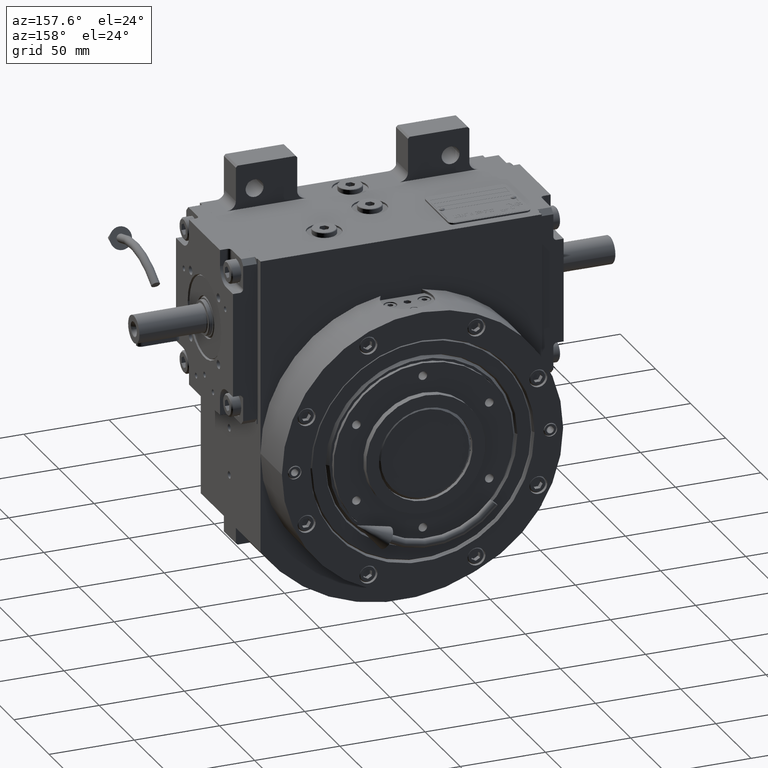
[diagram: clean part render]
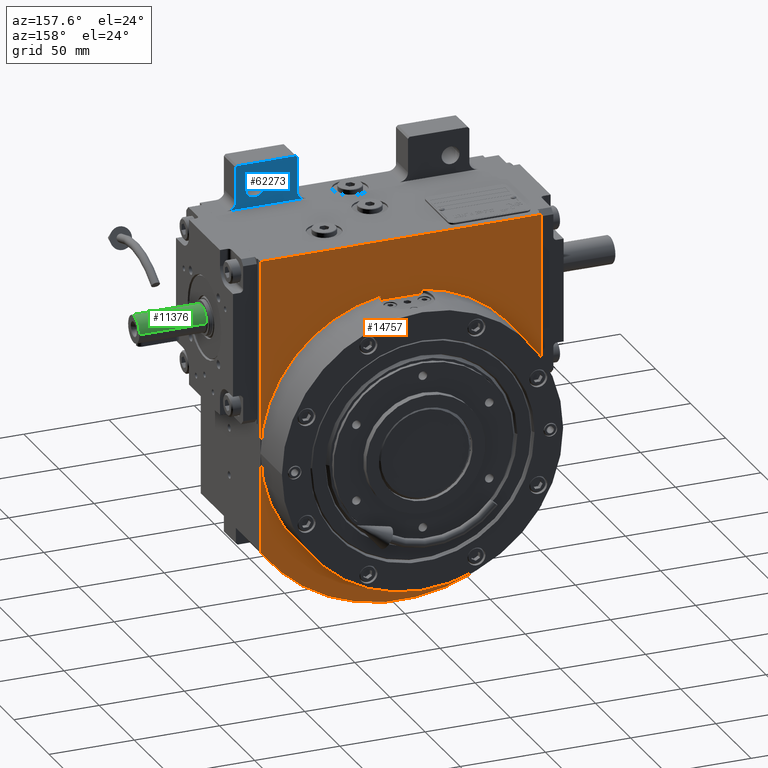
[diagram: same view with three faces highlighted in distinct colors, each labeled with its STEP entity id]
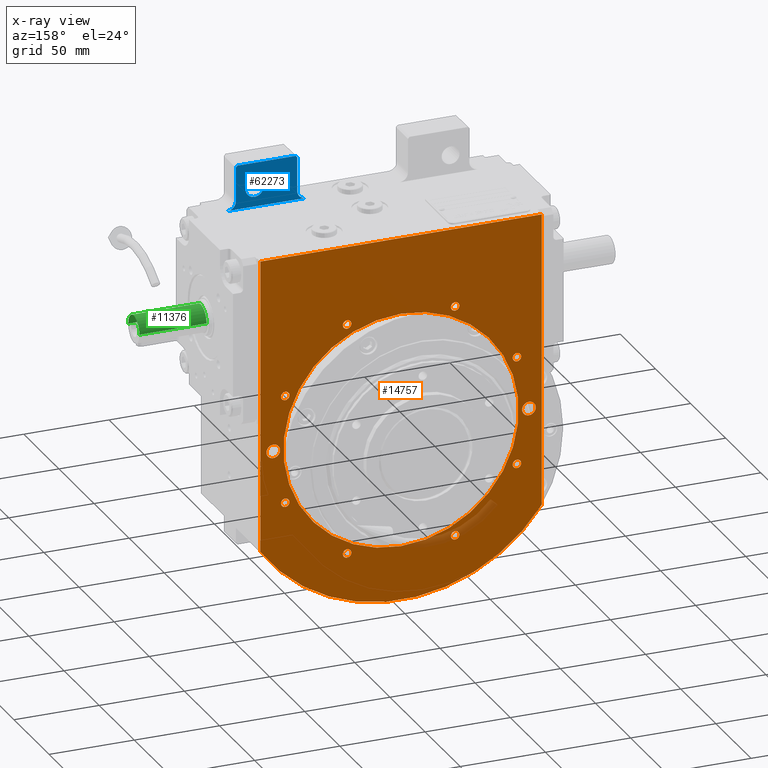
[diagram: x-ray of the same camera — body ghosted, the three highlighted faces saturated]
A machine part, auxiliary view with three faces highlighted in distinct colors.
The next image is the same camera in x-ray (body ghosted, the three faces saturated) — at least one of them is partly hidden behind the body in this view.
Their STEP definitions:

[orange] entity #14757 — the highlighted planar face has unit normal (0, 1, 0).
#283 = CARTESIAN_POINT ( 'NONE',  ( 82.50000000000000000, 44.50000000000000000, 114.0000000000000000 ) ) ;
#460 = ORIENTED_EDGE ( 'NONE', *, *, #58988, .F. ) ;
#473 = CIRCLE ( 'NONE', #11828, 2.500000000000002220 ) ;
#709 = VERTEX_POINT ( 'NONE', #23034 ) ;
#1004 = CARTESIAN_POINT ( 'NONE',  ( -31.69636963055245360, 44.50000000000000000, 67.97308402774881131 ) ) ;
#1346 = EDGE_LOOP ( 'NONE', ( #50347, #10510, #52534, #62505 ) ) ;
#1407 = EDGE_LOOP ( 'NONE', ( #32961, #19659 ) ) ;
#1413 = CARTESIAN_POINT ( 'NONE',  ( -31.69636963055249979, 44.50000000000000000, -67.97308402774881131 ) ) ;
#1415 = VECTOR ( 'NONE', #8162, 1000.000000000000000 ) ;
#1549 = EDGE_CURVE ( 'NONE', #36952, #43894, #59400, .T. ) ;
#1621 = CARTESIAN_POINT ( 'NONE',  ( -75.00000000000000000, 44.50000000000000000, -4.000000000000006217 ) ) ;
#1851 = DIRECTION ( 'NONE',  ( 0.000000000000000000, 1.000000000000000000, -0.000000000000000000 ) ) ;
#1952 = CARTESIAN_POINT ( 'NONE',  ( -31.69636963055245360, 44.50000000000000000, 67.97308402774881131 ) ) ;
#2127 = CIRCLE ( 'NONE', #38288, 2.500000000000002220 ) ;
#2706 = VERTEX_POINT ( 'NONE', #283 ) ;
#2821 = AXIS2_PLACEMENT_3D ( 'NONE', #43187, #18940, #58390 ) ;
#3342 = LINE ( 'NONE', #5160, #1415 ) ;
#3389 = DIRECTION ( 'NONE',  ( 0.000000000000000000, 1.000000000000000000, 0.000000000000000000 ) ) ;
#3439 = CIRCLE ( 'NONE', #40630, 2.500000000000002220 ) ;
#3840 = CARTESIAN_POINT ( 'NONE',  ( 29.19636963055245005, 44.50000000000000000, -67.97308402774881131 ) ) ;
#3912 = CARTESIAN_POINT ( 'NONE',  ( 67.97308402774881131, 44.50000000000000000, -31.69636963055249979 ) ) ;
#3995 = CARTESIAN_POINT ( 'NONE',  ( 0.000000000000000000, 44.50000000000000000, 0.000000000000000000 ) ) ;
#4170 = CARTESIAN_POINT ( 'NONE',  ( -29.19636963055245005, 44.50000000000000000, 67.97308402774881131 ) ) ;
#4234 = AXIS2_PLACEMENT_3D ( 'NONE', #5432, #1851, #16775 ) ;
#4435 = CARTESIAN_POINT ( 'NONE',  ( 29.19636963055250334, 44.50000000000000000, 67.97308402774871183 ) ) ;
#4614 = ORIENTED_EDGE ( 'NONE', *, *, #42520, .F. ) ;
#4644 = AXIS2_PLACEMENT_3D ( 'NONE', #61362, #56504, #17077 ) ;
#4852 = FACE_BOUND ( 'NONE', #1407, .T. ) ;
#5160 = CARTESIAN_POINT ( 'NONE',  ( -82.50000000000000000, 44.50000000000000000, -58.50000000000000000 ) ) ;
#5432 = CARTESIAN_POINT ( 'NONE',  ( 75.00000000000000000, 44.50000000000000000, 0.000000000000000000 ) ) ;
#5705 = DIRECTION ( 'NONE',  ( 0.000000000000000000, 1.000000000000000000, 0.000000000000000000 ) ) ;
#6118 = CIRCLE ( 'NONE', #20608, 4.000000000000006217 ) ;
#6536 = CARTESIAN_POINT ( 'NONE',  ( -31.69636963055249979, 44.50000000000000000, -67.97308402774881131 ) ) ;
#6998 = VERTEX_POINT ( 'NONE', #8274 ) ;
#7328 = CARTESIAN_POINT ( 'NONE',  ( 31.69636963055245360, 44.50000000000000000, -67.97308402774881131 ) ) ;
#7912 = EDGE_CURVE ( 'NONE', #50940, #39526, #18783, .T. ) ;
#8162 = DIRECTION ( 'NONE',  ( 0.000000000000000000, 0.000000000000000000, 1.000000000000000000 ) ) ;
#8274 = CARTESIAN_POINT ( 'NONE',  ( -29.19636963055245005, 44.50000000000000000, -67.97308402774881131 ) ) ;
#8367 = VERTEX_POINT ( 'NONE', #1621 ) ;
#8418 = ORIENTED_EDGE ( 'NONE', *, *, #52170, .F. ) ;
#8477 = ORIENTED_EDGE ( 'NONE', *, *, #13338, .F. ) ;
#8534 = CARTESIAN_POINT ( 'NONE',  ( 0.000000000000000000, 44.50000000000000000, 69.00000000000000000 ) ) ;
#8756 = DIRECTION ( 'NONE',  ( 0.000000000000000000, 1.000000000000000000, 0.000000000000000000 ) ) ;
#9023 = EDGE_CURVE ( 'NONE', #18531, #19812, #54609, .T. ) ;
#9057 = FACE_BOUND ( 'NONE', #29244, .T. ) ;
#9237 = DIRECTION ( 'NONE',  ( 0.000000000000000000, 1.000000000000000000, -0.000000000000000000 ) ) ;
#9300 = ORIENTED_EDGE ( 'NONE', *, *, #38558, .T. ) ;
#9384 = CARTESIAN_POINT ( 'NONE',  ( 0.000000000000000000, 44.50000000000000000, 0.000000000000000000 ) ) ;
#9712 = FACE_OUTER_BOUND ( 'NONE', #1346, .T. ) ;
#9837 = VERTEX_POINT ( 'NONE', #4170 ) ;
#10077 = CARTESIAN_POINT ( 'NONE',  ( -34.19636963055249623, 44.50000000000000000, -67.97308402774881131 ) ) ;
#10091 = DIRECTION ( 'NONE',  ( 1.000000000000000000, 0.000000000000000000, 0.000000000000000000 ) ) ;
#10510 = ORIENTED_EDGE ( 'NONE', *, *, #36447, .T. ) ;
#10511 = CARTESIAN_POINT ( 'NONE',  ( 75.00000000000000000, 44.50000000000000000, 4.000000000000006217 ) ) ;
#10890 = DIRECTION ( 'NONE',  ( 0.000000000000000000, 0.000000000000000000, 1.000000000000000000 ) ) ;
#11782 = CARTESIAN_POINT ( 'NONE',  ( -82.50000000000000000, 44.50000000000000000, -58.50000000000000000 ) ) ;
#11828 = AXIS2_PLACEMENT_3D ( 'NONE', #62460, #8756, #19131 ) ;
#13338 = EDGE_CURVE ( 'NONE', #43894, #36952, #23816, .T. ) ;
#13420 = AXIS2_PLACEMENT_3D ( 'NONE', #62368, #27474, #47177 ) ;
#13581 = CIRCLE ( 'NONE', #4234, 4.000000000000006217 ) ;
#14284 = DIRECTION ( 'NONE',  ( 0.000000000000000000, 1.000000000000000000, 0.000000000000000000 ) ) ;
#14311 = EDGE_CURVE ( 'NONE', #2706, #48928, #63165, .T. ) ;
#14577 = FACE_BOUND ( 'NONE', #22757, .T. ) ;
#14745 = DIRECTION ( 'NONE',  ( 0.000000000000000000, 0.000000000000000000, -1.000000000000000000 ) ) ;
#14757 = ADVANCED_FACE ( 'NONE', ( #62467, #33060, #52778, #56354, #33992, #28830, #4852, #19136, #14577, #9057, #24307, #9712 ), #19427, .T. ) ;
#14922 = EDGE_LOOP ( 'NONE', ( #30434, #55457 ) ) ;
#14986 = DIRECTION ( 'NONE',  ( 0.000000000000000000, 1.000000000000000000, 0.000000000000000000 ) ) ;
#15319 = CARTESIAN_POINT ( 'NONE',  ( 8.450062914116737844E-15, 44.50000000000000000, -69.00000000000000000 ) ) ;
#16330 = DIRECTION ( 'NONE',  ( -1.000000000000000000, 0.000000000000000000, 0.000000000000000000 ) ) ;
#16775 = DIRECTION ( 'NONE',  ( 0.000000000000000000, 0.000000000000000000, -1.000000000000000000 ) ) ;
#16874 = DIRECTION ( 'NONE',  ( 0.000000000000000000, 1.000000000000000000, 0.000000000000000000 ) ) ;
#16987 = CIRCLE ( 'NONE', #33514, 2.499999999999998668 ) ;
#17077 = DIRECTION ( 'NONE',  ( -1.000000000000000000, 0.000000000000000000, -2.775557561562888984E-15 ) ) ;
#17182 = EDGE_CURVE ( 'NONE', #25637, #2706, #23508, .T. ) ;
#17366 = AXIS2_PLACEMENT_3D ( 'NONE', #22491, #3389, #23446 ) ;
#18235 = CIRCLE ( 'NONE', #31684, 2.499999999999998668 ) ;
#18335 = CARTESIAN_POINT ( 'NONE',  ( 34.19636963055249623, 44.50000000000000000, 67.97308402774871183 ) ) ;
#18366 = DIRECTION ( 'NONE',  ( 0.000000000000000000, 1.000000000000000000, 0.000000000000000000 ) ) ;
#18531 = VERTEX_POINT ( 'NONE', #3840 ) ;
#18576 = DIRECTION ( 'NONE',  ( -0.000000000000000000, -1.000000000000000000, -0.000000000000000000 ) ) ;
#18634 = AXIS2_PLACEMENT_3D ( 'NONE', #9384, #54351, #57946 ) ;
#18783 = CIRCLE ( 'NONE', #45653, 2.500000000000002220 ) ;
#18940 = DIRECTION ( 'NONE',  ( 0.000000000000000000, 1.000000000000000000, 0.000000000000000000 ) ) ;
#18985 = EDGE_CURVE ( 'NONE', #19812, #18531, #21492, .T. ) ;
#19131 = DIRECTION ( 'NONE',  ( 1.000000000000000000, 0.000000000000000000, 0.000000000000000000 ) ) ;
#19136 = FACE_BOUND ( 'NONE', #29836, .T. ) ;
#19204 = CARTESIAN_POINT ( 'NONE',  ( 82.50000000000000000, 44.50000000000000000, 114.0000000000000000 ) ) ;
#19427 = PLANE ( 'NONE',  #18634 ) ;
#19659 = ORIENTED_EDGE ( 'NONE', *, *, #18985, .F. ) ;
#19812 = VERTEX_POINT ( 'NONE', #34588 ) ;
#19921 = ORIENTED_EDGE ( 'NONE', *, *, #1549, .F. ) ;
#20422 = CIRCLE ( 'NONE', #2821, 101.3235294117645822 ) ;
#20567 = EDGE_CURVE ( 'NONE', #8367, #34363, #6118, .T. ) ;
#20608 = AXIS2_PLACEMENT_3D ( 'NONE', #52407, #41118, #46594 ) ;
#20992 = CARTESIAN_POINT ( 'NONE',  ( 65.47308402774879710, 44.50000000000000000, -31.69636963055249979 ) ) ;
#21327 = DIRECTION ( 'NONE',  ( -0.000000000000000000, -1.000000000000000000, -0.000000000000000000 ) ) ;
#21356 = EDGE_CURVE ( 'NONE', #34363, #8367, #35091, .T. ) ;
#21492 = CIRCLE ( 'NONE', #17366, 2.500000000000002220 ) ;
#21632 = DIRECTION ( 'NONE',  ( 0.000000000000000000, 0.000000000000000000, 1.000000000000000000 ) ) ;
#21717 = EDGE_CURVE ( 'NONE', #48928, #36216, #20422, .T. ) ;
#22131 = CARTESIAN_POINT ( 'NONE',  ( -75.00000000000000000, 44.50000000000000000, 4.000000000000006217 ) ) ;
#22491 = CARTESIAN_POINT ( 'NONE',  ( 31.69636963055245360, 44.50000000000000000, -67.97308402774881131 ) ) ;
#22588 = DIRECTION ( 'NONE',  ( -1.000000000000000000, 0.000000000000000000, 0.000000000000000000 ) ) ;
#22757 = EDGE_LOOP ( 'NONE', ( #19921, #8477 ) ) ;
#23034 = CARTESIAN_POINT ( 'NONE',  ( 75.00000000000000000, 44.50000000000000000, -4.000000000000006217 ) ) ;
#23059 = DIRECTION ( 'NONE',  ( 1.000000000000000000, 0.000000000000000000, 2.775557561562888984E-15 ) ) ;
#23446 = DIRECTION ( 'NONE',  ( 1.000000000000000000, 0.000000000000000000, 0.000000000000000000 ) ) ;
#23508 = LINE ( 'NONE', #35118, #24663 ) ;
#23816 = CIRCLE ( 'NONE', #52716, 2.500000000000002220 ) ;
#24307 = FACE_BOUND ( 'NONE', #51087, .T. ) ;
#24580 = ORIENTED_EDGE ( 'NONE', *, *, #24953, .F. ) ;
#24663 = VECTOR ( 'NONE', #39664, 1000.000000000000000 ) ;
#24873 = VERTEX_POINT ( 'NONE', #40090 ) ;
#24953 = EDGE_CURVE ( 'NONE', #41360, #24873, #51610, .T. ) ;
#25637 = VERTEX_POINT ( 'NONE', #54820 ) ;
#26143 = VERTEX_POINT ( 'NONE', #10077 ) ;
#26190 = AXIS2_PLACEMENT_3D ( 'NONE', #40917, #34763, #16330 ) ;
#26614 = ORIENTED_EDGE ( 'NONE', *, *, #44676, .F. ) ;
#26742 = AXIS2_PLACEMENT_3D ( 'NONE', #7328, #27110, #46821 ) ;
#26985 = VERTEX_POINT ( 'NONE', #10511 ) ;
#27110 = DIRECTION ( 'NONE',  ( 0.000000000000000000, 1.000000000000000000, 0.000000000000000000 ) ) ;
#27267 = DIRECTION ( 'NONE',  ( -1.000000000000000000, 0.000000000000000000, -2.775557561562888984E-15 ) ) ;
#27423 = EDGE_CURVE ( 'NONE', #6998, #26143, #18235, .T. ) ;
#27474 = DIRECTION ( 'NONE',  ( 0.000000000000000000, 1.000000000000000000, 0.000000000000000000 ) ) ;
#28002 = CARTESIAN_POINT ( 'NONE',  ( -65.47308402774879710, 44.50000000000000000, -31.69636963055245360 ) ) ;
#28625 = ORIENTED_EDGE ( 'NONE', *, *, #27423, .F. ) ;
#28738 = CARTESIAN_POINT ( 'NONE',  ( -67.97308402774881131, 44.50000000000000000, -31.69636963055245360 ) ) ;
#28830 = FACE_BOUND ( 'NONE', #49007, .T. ) ;
#29186 = CIRCLE ( 'NONE', #31290, 2.500000000000002220 ) ;
#29244 = EDGE_LOOP ( 'NONE', ( #4614, #24580 ) ) ;
#29836 = EDGE_LOOP ( 'NONE', ( #35783, #28625 ) ) ;
#30019 = CARTESIAN_POINT ( 'NONE',  ( -70.47308402774881131, 44.50000000000000000, -31.69636963055245360 ) ) ;
#30118 = EDGE_CURVE ( 'NONE', #26143, #6998, #58015, .T. ) ;
#30385 = EDGE_LOOP ( 'NONE', ( #46214, #33587 ) ) ;
#30434 = ORIENTED_EDGE ( 'NONE', *, *, #53893, .F. ) ;
#31290 = AXIS2_PLACEMENT_3D ( 'NONE', #62778, #52164, #23059 ) ;
#31684 = AXIS2_PLACEMENT_3D ( 'NONE', #6536, #46021, #42118 ) ;
#32961 = ORIENTED_EDGE ( 'NONE', *, *, #9023, .F. ) ;
#33060 = FACE_BOUND ( 'NONE', #30385, .T. ) ;
#33514 = AXIS2_PLACEMENT_3D ( 'NONE', #1952, #16874, #42073 ) ;
#33587 = ORIENTED_EDGE ( 'NONE', *, *, #20567, .F. ) ;
#33717 = CARTESIAN_POINT ( 'NONE',  ( -67.97308402774871183, 44.50000000000000000, 31.69636963055245360 ) ) ;
#33992 = FACE_BOUND ( 'NONE', #45109, .T. ) ;
#34172 = VERTEX_POINT ( 'NONE', #4435 ) ;
#34363 = VERTEX_POINT ( 'NONE', #22131 ) ;
#34429 = DIRECTION ( 'NONE',  ( -1.000000000000000000, 0.000000000000000000, 0.000000000000000000 ) ) ;
#34487 = CARTESIAN_POINT ( 'NONE',  ( 75.00000000000000000, 44.50000000000000000, 0.000000000000000000 ) ) ;
#34588 = CARTESIAN_POINT ( 'NONE',  ( 34.19636963055244649, 44.50000000000000000, -67.97308402774881131 ) ) ;
#34713 = CARTESIAN_POINT ( 'NONE',  ( 67.97308402774881131, 44.50000000000000000, 31.69636963055249979 ) ) ;
#34763 = DIRECTION ( 'NONE',  ( 0.000000000000000000, 1.000000000000000000, 0.000000000000000000 ) ) ;
#35091 = CIRCLE ( 'NONE', #43360, 4.000000000000006217 ) ;
#35111 = VECTOR ( 'NONE', #59279, 1000.000000000000000 ) ;
#35118 = CARTESIAN_POINT ( 'NONE',  ( -82.50000000000000000, 44.50000000000000000, 114.0000000000000000 ) ) ;
#35631 = AXIS2_PLACEMENT_3D ( 'NONE', #48125, #18366, #22588 ) ;
#35783 = ORIENTED_EDGE ( 'NONE', *, *, #30118, .F. ) ;
#36117 = EDGE_CURVE ( 'NONE', #34172, #49250, #39614, .T. ) ;
#36216 = VERTEX_POINT ( 'NONE', #11782 ) ;
#36256 = CARTESIAN_POINT ( 'NONE',  ( -65.47308402774879710, 44.50000000000000000, 31.69636963055245360 ) ) ;
#36447 = EDGE_CURVE ( 'NONE', #36216, #25637, #3342, .T. ) ;
#36952 = VERTEX_POINT ( 'NONE', #30019 ) ;
#37454 = EDGE_LOOP ( 'NONE', ( #38986, #61851 ) ) ;
#37916 = DIRECTION ( 'NONE',  ( -1.000000000000000000, 0.000000000000000000, 0.000000000000000000 ) ) ;
#38288 = AXIS2_PLACEMENT_3D ( 'NONE', #3912, #63096, #27267 ) ;
#38558 = EDGE_CURVE ( 'NONE', #51401, #58490, #56796, .T. ) ;
#38986 = ORIENTED_EDGE ( 'NONE', *, *, #36117, .F. ) ;
#39040 = EDGE_CURVE ( 'NONE', #39645, #43936, #2127, .T. ) ;
#39296 = CARTESIAN_POINT ( 'NONE',  ( 70.47308402774881131, 44.50000000000000000, -31.69636963055249979 ) ) ;
#39526 = VERTEX_POINT ( 'NONE', #49116 ) ;
#39614 = CIRCLE ( 'NONE', #26190, 2.499999999999998668 ) ;
#39645 = VERTEX_POINT ( 'NONE', #20992 ) ;
#39664 = DIRECTION ( 'NONE',  ( 1.000000000000000000, 0.000000000000000000, 0.000000000000000000 ) ) ;
#39743 = EDGE_CURVE ( 'NONE', #709, #26985, #13581, .T. ) ;
#40090 = CARTESIAN_POINT ( 'NONE',  ( -70.47308402774881131, 44.50000000000000000, 31.69636963055245360 ) ) ;
#40484 = AXIS2_PLACEMENT_3D ( 'NONE', #1413, #58989, #34429 ) ;
#40630 = AXIS2_PLACEMENT_3D ( 'NONE', #33717, #14284, #37916 ) ;
#40917 = CARTESIAN_POINT ( 'NONE',  ( 31.69636963055249979, 44.50000000000000000, 67.97308402774871183 ) ) ;
#41118 = DIRECTION ( 'NONE',  ( 0.000000000000000000, 1.000000000000000000, 0.000000000000000000 ) ) ;
#41126 = EDGE_CURVE ( 'NONE', #43936, #39645, #29186, .T. ) ;
#41278 = AXIS2_PLACEMENT_3D ( 'NONE', #1004, #55647, #54690 ) ;
#41360 = VERTEX_POINT ( 'NONE', #36256 ) ;
#41862 = CIRCLE ( 'NONE', #35631, 2.500000000000002220 ) ;
#42073 = DIRECTION ( 'NONE',  ( 1.000000000000000000, 0.000000000000000000, 0.000000000000000000 ) ) ;
#42118 = DIRECTION ( 'NONE',  ( 1.000000000000000000, 0.000000000000000000, -5.551115123125785858E-15 ) ) ;
#42520 = EDGE_CURVE ( 'NONE', #24873, #41360, #3439, .T. ) ;
#43187 = CARTESIAN_POINT ( 'NONE',  ( 0.000000000000000000, 44.50000000000000000, 0.3235294117646390077 ) ) ;
#43234 = EDGE_CURVE ( 'NONE', #58490, #51401, #62343, .T. ) ;
#43360 = AXIS2_PLACEMENT_3D ( 'NONE', #50053, #5705, #10890 ) ;
#43894 = VERTEX_POINT ( 'NONE', #28002 ) ;
#43936 = VERTEX_POINT ( 'NONE', #39296 ) ;
#43979 = EDGE_LOOP ( 'NONE', ( #9300, #55874 ) ) ;
#44676 = EDGE_CURVE ( 'NONE', #39526, #50940, #41862, .T. ) ;
#44810 = AXIS2_PLACEMENT_3D ( 'NONE', #60109, #21327, #21632 ) ;
#45109 = EDGE_LOOP ( 'NONE', ( #26614, #48145 ) ) ;
#45214 = CARTESIAN_POINT ( 'NONE',  ( 82.50000000000000000, 44.50000000000000000, -58.50000000000000000 ) ) ;
#45653 = AXIS2_PLACEMENT_3D ( 'NONE', #34713, #14986, #10091 ) ;
#46021 = DIRECTION ( 'NONE',  ( 0.000000000000000000, 1.000000000000000000, 0.000000000000000000 ) ) ;
#46214 = ORIENTED_EDGE ( 'NONE', *, *, #21356, .F. ) ;
#46594 = DIRECTION ( 'NONE',  ( 0.000000000000000000, 0.000000000000000000, 1.000000000000000000 ) ) ;
#46821 = DIRECTION ( 'NONE',  ( -1.000000000000000000, 0.000000000000000000, 0.000000000000000000 ) ) ;
#47177 = DIRECTION ( 'NONE',  ( 1.000000000000000000, 0.000000000000000000, 2.775557561562888984E-15 ) ) ;
#48125 = CARTESIAN_POINT ( 'NONE',  ( 67.97308402774881131, 44.50000000000000000, 31.69636963055249979 ) ) ;
#48145 = ORIENTED_EDGE ( 'NONE', *, *, #7912, .F. ) ;
#48634 = DIRECTION ( 'NONE',  ( 0.000000000000000000, 0.000000000000000000, 1.000000000000000000 ) ) ;
#48725 = CARTESIAN_POINT ( 'NONE',  ( 70.47308402774881131, 44.50000000000000000, 31.69636963055249979 ) ) ;
#48928 = VERTEX_POINT ( 'NONE', #45214 ) ;
#49007 = EDGE_LOOP ( 'NONE', ( #51387, #62282 ) ) ;
#49116 = CARTESIAN_POINT ( 'NONE',  ( 65.47308402774879710, 44.50000000000000000, 31.69636963055249979 ) ) ;
#49250 = VERTEX_POINT ( 'NONE', #18335 ) ;
#50053 = CARTESIAN_POINT ( 'NONE',  ( -75.00000000000000000, 44.50000000000000000, 0.000000000000000000 ) ) ;
#50347 = ORIENTED_EDGE ( 'NONE', *, *, #21717, .T. ) ;
#50940 = VERTEX_POINT ( 'NONE', #48725 ) ;
#51087 = EDGE_LOOP ( 'NONE', ( #8418, #460 ) ) ;
#51387 = ORIENTED_EDGE ( 'NONE', *, *, #39040, .F. ) ;
#51401 = VERTEX_POINT ( 'NONE', #8534 ) ;
#51610 = CIRCLE ( 'NONE', #13420, 2.500000000000002220 ) ;
#52164 = DIRECTION ( 'NONE',  ( 0.000000000000000000, 1.000000000000000000, 0.000000000000000000 ) ) ;
#52170 = EDGE_CURVE ( 'NONE', #56850, #9837, #53627, .T. ) ;
#52407 = CARTESIAN_POINT ( 'NONE',  ( -75.00000000000000000, 44.50000000000000000, 0.000000000000000000 ) ) ;
#52534 = ORIENTED_EDGE ( 'NONE', *, *, #17182, .T. ) ;
#52716 = AXIS2_PLACEMENT_3D ( 'NONE', #28738, #63327, #62680 ) ;
#52778 = FACE_BOUND ( 'NONE', #14922, .T. ) ;
#53304 = CARTESIAN_POINT ( 'NONE',  ( -34.19636963055244649, 44.50000000000000000, 67.97308402774881131 ) ) ;
#53627 = CIRCLE ( 'NONE', #41278, 2.500000000000002220 ) ;
#53893 = EDGE_CURVE ( 'NONE', #26985, #709, #58970, .T. ) ;
#54351 = DIRECTION ( 'NONE',  ( -0.000000000000000000, 1.000000000000000000, 0.000000000000000000 ) ) ;
#54609 = CIRCLE ( 'NONE', #26742, 2.499999999999998668 ) ;
#54690 = DIRECTION ( 'NONE',  ( -1.000000000000000000, 0.000000000000000000, 0.000000000000000000 ) ) ;
#54820 = CARTESIAN_POINT ( 'NONE',  ( -82.50000000000000000, 44.50000000000000000, 114.0000000000000000 ) ) ;
#54871 = AXIS2_PLACEMENT_3D ( 'NONE', #34487, #9237, #14745 ) ;
#55457 = ORIENTED_EDGE ( 'NONE', *, *, #39743, .F. ) ;
#55647 = DIRECTION ( 'NONE',  ( 0.000000000000000000, 1.000000000000000000, 0.000000000000000000 ) ) ;
#55874 = ORIENTED_EDGE ( 'NONE', *, *, #43234, .T. ) ;
#56354 = FACE_BOUND ( 'NONE', #37454, .T. ) ;
#56504 = DIRECTION ( 'NONE',  ( 0.000000000000000000, 1.000000000000000000, 0.000000000000000000 ) ) ;
#56796 = CIRCLE ( 'NONE', #61955, 69.00000000000000000 ) ;
#56850 = VERTEX_POINT ( 'NONE', #53304 ) ;
#57946 = DIRECTION ( 'NONE',  ( 1.000000000000000000, 0.000000000000000000, 0.000000000000000000 ) ) ;
#58015 = CIRCLE ( 'NONE', #40484, 2.500000000000002220 ) ;
#58390 = DIRECTION ( 'NONE',  ( 0.8142235123367200789, 0.000000000000000000, -0.5805515239477501144 ) ) ;
#58490 = VERTEX_POINT ( 'NONE', #15319 ) ;
#58970 = CIRCLE ( 'NONE', #54871, 4.000000000000006217 ) ;
#58988 = EDGE_CURVE ( 'NONE', #9837, #56850, #16987, .T. ) ;
#58989 = DIRECTION ( 'NONE',  ( 0.000000000000000000, 1.000000000000000000, 0.000000000000000000 ) ) ;
#59279 = DIRECTION ( 'NONE',  ( -1.647635329298784785E-16, 0.000000000000000000, -1.000000000000000000 ) ) ;
#59400 = CIRCLE ( 'NONE', #4644, 2.500000000000002220 ) ;
#60109 = CARTESIAN_POINT ( 'NONE',  ( 0.000000000000000000, 44.50000000000000000, 0.000000000000000000 ) ) ;
#61362 = CARTESIAN_POINT ( 'NONE',  ( -67.97308402774881131, 44.50000000000000000, -31.69636963055245360 ) ) ;
#61851 = ORIENTED_EDGE ( 'NONE', *, *, #63190, .F. ) ;
#61955 = AXIS2_PLACEMENT_3D ( 'NONE', #3995, #18576, #48634 ) ;
#62282 = ORIENTED_EDGE ( 'NONE', *, *, #41126, .F. ) ;
#62343 = CIRCLE ( 'NONE', #44810, 69.00000000000000000 ) ;
#62368 = CARTESIAN_POINT ( 'NONE',  ( -67.97308402774881131, 44.50000000000000000, 31.69636963055245360 ) ) ;
#62460 = CARTESIAN_POINT ( 'NONE',  ( 31.69636963055249979, 44.50000000000000000, 67.97308402774871183 ) ) ;
#62467 = FACE_BOUND ( 'NONE', #43979, .T. ) ;
#62505 = ORIENTED_EDGE ( 'NONE', *, *, #14311, .T. ) ;
#62680 = DIRECTION ( 'NONE',  ( 1.000000000000000000, 0.000000000000000000, 2.775557561562888984E-15 ) ) ;
#62778 = CARTESIAN_POINT ( 'NONE',  ( 67.97308402774871183, 44.50000000000000000, -31.69636963055249979 ) ) ;
#63096 = DIRECTION ( 'NONE',  ( 0.000000000000000000, 1.000000000000000000, 0.000000000000000000 ) ) ;
#63165 = LINE ( 'NONE', #19204, #35111 ) ;
#63190 = EDGE_CURVE ( 'NONE', #49250, #34172, #473, .T. ) ;
#63327 = DIRECTION ( 'NONE',  ( 0.000000000000000000, 1.000000000000000000, 0.000000000000000000 ) ) ;

[blue] entity #62273 — the highlighted planar face has unit normal (0, -1, 0).
#509 = ORIENTED_EDGE ( 'NONE', *, *, #13326, .F. ) ;
#646 = ORIENTED_EDGE ( 'NONE', *, *, #1033, .T. ) ;
#1033 = EDGE_CURVE ( 'NONE', #22109, #52775, #46882, .T. ) ;
#1166 = VERTEX_POINT ( 'NONE', #8347 ) ;
#1762 = VERTEX_POINT ( 'NONE', #16283 ) ;
#2570 = CARTESIAN_POINT ( 'NONE',  ( 32.49999999999934630, -24.50000000000000000, 139.0000000000000000 ) ) ;
#2807 = VECTOR ( 'NONE', #60152, 1000.000000000000000 ) ;
#3810 = CARTESIAN_POINT ( 'NONE',  ( 0.000000000000000000, -24.50000000000000000, 0.000000000000000000 ) ) ;
#4536 = DIRECTION ( 'NONE',  ( -1.000000000000000000, 0.000000000000000000, 0.000000000000000000 ) ) ;
#4872 = EDGE_CURVE ( 'NONE', #1762, #16660, #54082, .T. ) ;
#5198 = CARTESIAN_POINT ( 'NONE',  ( 27.49999999999934630, -24.50000000000000000, 119.0000000000000000 ) ) ;
#7086 = CIRCLE ( 'NONE', #43267, 5.249999999999997335 ) ;
#7714 = DIRECTION ( 'NONE',  ( 1.000000000000000000, 0.000000000000000000, 5.286776307738843186E-15 ) ) ;
#7906 = CARTESIAN_POINT ( 'NONE',  ( 68.50000000000000000, -24.50000000000000000, 139.0000000000000000 ) ) ;
#8347 = CARTESIAN_POINT ( 'NONE',  ( 27.49999999999934630, -24.50000000000000000, 114.0000000000000000 ) ) ;
#9289 = VECTOR ( 'NONE', #43656, 1000.000000000000114 ) ;
#9492 = CARTESIAN_POINT ( 'NONE',  ( 33.49999999999934630, -24.50000000000000000, 140.0000000000000000 ) ) ;
#10188 = ORIENTED_EDGE ( 'NONE', *, *, #17239, .F. ) ;
#11343 = DIRECTION ( 'NONE',  ( 0.000000000000000000, -1.000000000000000000, 0.000000000000000000 ) ) ;
#11978 = EDGE_CURVE ( 'NONE', #22109, #63511, #52996, .T. ) ;
#12847 = CARTESIAN_POINT ( 'NONE',  ( 32.49999999999934630, -24.50000000000000000, 119.0000000000000000 ) ) ;
#13207 = DIRECTION ( 'NONE',  ( 0.000000000000000000, -1.000000000000000000, 0.000000000000000000 ) ) ;
#13326 = EDGE_CURVE ( 'NONE', #47712, #33778, #20729, .T. ) ;
#13818 = AXIS2_PLACEMENT_3D ( 'NONE', #3810, #13207, #18713 ) ;
#14997 = CARTESIAN_POINT ( 'NONE',  ( 68.50000000000000000, -24.50000000000000000, 119.0000000000000000 ) ) ;
#15606 = EDGE_CURVE ( 'NONE', #1762, #54009, #39589, .T. ) ;
#16283 = CARTESIAN_POINT ( 'NONE',  ( 68.50000000000000000, -24.50000000000000000, 119.0000000000000000 ) ) ;
#16577 = AXIS2_PLACEMENT_3D ( 'NONE', #28109, #52363, #7714 ) ;
#16660 = VERTEX_POINT ( 'NONE', #17214 ) ;
#17214 = CARTESIAN_POINT ( 'NONE',  ( 73.50000000000000000, -24.50000000000000000, 114.0000000000000000 ) ) ;
#17239 = EDGE_CURVE ( 'NONE', #33778, #47712, #7086, .T. ) ;
#18536 = VECTOR ( 'NONE', #54435, 1000.000000000000000 ) ;
#18713 = DIRECTION ( 'NONE',  ( -1.000000000000000000, 0.000000000000000000, 0.000000000000000000 ) ) ;
#20729 = CIRCLE ( 'NONE', #16577, 5.249999999999997335 ) ;
#21238 = EDGE_LOOP ( 'NONE', ( #32585, #37749, #35093, #47938, #63556, #646, #60339, #35789 ) ) ;
#22109 = VERTEX_POINT ( 'NONE', #23705 ) ;
#22323 = DIRECTION ( 'NONE',  ( 0.7071067811865474617, 0.000000000000000000, 0.7071067811865474617 ) ) ;
#23705 = CARTESIAN_POINT ( 'NONE',  ( 32.49999999999934630, -24.50000000000000000, 139.0000000000000000 ) ) ;
#24786 = DIRECTION ( 'NONE',  ( -1.000000000000000000, 0.000000000000000000, 5.286776307738843186E-15 ) ) ;
#26750 = EDGE_CURVE ( 'NONE', #1166, #16660, #51989, .T. ) ;
#27422 = CARTESIAN_POINT ( 'NONE',  ( 27.49999999999934630, -24.50000000000000000, 114.0000000000000000 ) ) ;
#28109 = CARTESIAN_POINT ( 'NONE',  ( 57.50000000000000000, -24.50000000000000000, 125.0000000000000000 ) ) ;
#32585 = ORIENTED_EDGE ( 'NONE', *, *, #15606, .F. ) ;
#33425 = AXIS2_PLACEMENT_3D ( 'NONE', #57601, #43692, #4536 ) ;
#33778 = VERTEX_POINT ( 'NONE', #43028 ) ;
#35070 = AXIS2_PLACEMENT_3D ( 'NONE', #5198, #11343, #60503 ) ;
#35093 = ORIENTED_EDGE ( 'NONE', *, *, #26750, .F. ) ;
#35789 = ORIENTED_EDGE ( 'NONE', *, *, #52437, .T. ) ;
#36671 = VECTOR ( 'NONE', #22323, 1000.000000000000114 ) ;
#37749 = ORIENTED_EDGE ( 'NONE', *, *, #4872, .T. ) ;
#38729 = VECTOR ( 'NONE', #56617, 1000.000000000000000 ) ;
#38773 = EDGE_LOOP ( 'NONE', ( #509, #10188 ) ) ;
#39589 = LINE ( 'NONE', #14997, #18536 ) ;
#39732 = CARTESIAN_POINT ( 'NONE',  ( 62.75000000000000000, -24.50000000000000000, 125.0000000000000000 ) ) ;
#40648 = VERTEX_POINT ( 'NONE', #58819 ) ;
#43028 = CARTESIAN_POINT ( 'NONE',  ( 52.25000000000000000, -24.50000000000000000, 125.0000000000000000 ) ) ;
#43267 = AXIS2_PLACEMENT_3D ( 'NONE', #49332, #43875, #24786 ) ;
#43328 = CARTESIAN_POINT ( 'NONE',  ( 67.50000000000000000, -24.50000000000000000, 140.0000000000000000 ) ) ;
#43656 = DIRECTION ( 'NONE',  ( 0.7071067811865474617, 0.000000000000000000, -0.7071067811865474617 ) ) ;
#43692 = DIRECTION ( 'NONE',  ( 0.000000000000000000, -1.000000000000000000, 0.000000000000000000 ) ) ;
#43875 = DIRECTION ( 'NONE',  ( 0.000000000000000000, 1.000000000000000000, 0.000000000000000000 ) ) ;
#44106 = EDGE_CURVE ( 'NONE', #40648, #52775, #46599, .T. ) ;
#46599 = LINE ( 'NONE', #61153, #38729 ) ;
#46882 = LINE ( 'NONE', #2570, #36671 ) ;
#47712 = VERTEX_POINT ( 'NONE', #39732 ) ;
#47938 = ORIENTED_EDGE ( 'NONE', *, *, #51999, .T. ) ;
#48137 = DIRECTION ( 'NONE',  ( 0.000000000000000000, 0.000000000000000000, -1.000000000000000000 ) ) ;
#48158 = VECTOR ( 'NONE', #48137, 1000.000000000000000 ) ;
#48819 = LINE ( 'NONE', #43328, #9289 ) ;
#49332 = CARTESIAN_POINT ( 'NONE',  ( 57.50000000000000000, -24.50000000000000000, 125.0000000000000000 ) ) ;
#51612 = CIRCLE ( 'NONE', #35070, 5.000000000000004441 ) ;
#51989 = LINE ( 'NONE', #27422, #2807 ) ;
#51999 = EDGE_CURVE ( 'NONE', #1166, #63511, #51612, .T. ) ;
#52363 = DIRECTION ( 'NONE',  ( 0.000000000000000000, 1.000000000000000000, 0.000000000000000000 ) ) ;
#52437 = EDGE_CURVE ( 'NONE', #40648, #54009, #48819, .T. ) ;
#52775 = VERTEX_POINT ( 'NONE', #9492 ) ;
#52996 = LINE ( 'NONE', #62364, #48158 ) ;
#54009 = VERTEX_POINT ( 'NONE', #7906 ) ;
#54082 = CIRCLE ( 'NONE', #33425, 5.000000000000004441 ) ;
#54435 = DIRECTION ( 'NONE',  ( 0.000000000000000000, 0.000000000000000000, 1.000000000000000000 ) ) ;
#56617 = DIRECTION ( 'NONE',  ( -1.000000000000000000, 0.000000000000000000, 0.000000000000000000 ) ) ;
#57526 = PLANE ( 'NONE',  #13818 ) ;
#57601 = CARTESIAN_POINT ( 'NONE',  ( 73.50000000000000000, -24.50000000000000000, 119.0000000000000000 ) ) ;
#58775 = FACE_OUTER_BOUND ( 'NONE', #21238, .T. ) ;
#58819 = CARTESIAN_POINT ( 'NONE',  ( 67.50000000000000000, -24.50000000000000000, 140.0000000000000000 ) ) ;
#60152 = DIRECTION ( 'NONE',  ( 1.000000000000000000, 0.000000000000000000, 0.000000000000000000 ) ) ;
#60339 = ORIENTED_EDGE ( 'NONE', *, *, #44106, .F. ) ;
#60503 = DIRECTION ( 'NONE',  ( -1.387778780781444492E-15, 0.000000000000000000, -1.000000000000000000 ) ) ;
#61153 = CARTESIAN_POINT ( 'NONE',  ( 67.50000000000000000, -24.50000000000000000, 140.0000000000000000 ) ) ;
#62273 = ADVANCED_FACE ( 'NONE', ( #62991, #58775 ), #57526, .F. ) ;
#62364 = CARTESIAN_POINT ( 'NONE',  ( 32.49999999999934630, -24.50000000000000000, 139.0000000000000000 ) ) ;
#62991 = FACE_BOUND ( 'NONE', #38773, .T. ) ;
#63511 = VERTEX_POINT ( 'NONE', #12847 ) ;
#63556 = ORIENTED_EDGE ( 'NONE', *, *, #11978, .F. ) ;

[green] entity #11376 — the highlighted cylindrical surface (edge-blend (fillet) strip) has radius 8 mm, axis along (-1, -0, -0).
#998 = CARTESIAN_POINT ( 'NONE',  ( -8.000000000000000000, -105.4999999999999858, 5.273559366969493567E-13 ) ) ;
#4276 = VECTOR ( 'NONE', #7093, 1000.000000000000000 ) ;
#5112 = CARTESIAN_POINT ( 'NONE',  ( 7.999999999999934275, -66.09999999999999432, -3.480229993080286022E-09 ) ) ;
#5397 = ORIENTED_EDGE ( 'NONE', *, *, #40384, .F. ) ;
#6288 = EDGE_LOOP ( 'NONE', ( #22663, #55916, #5397, #37352 ) ) ;
#7093 = DIRECTION ( 'NONE',  ( 4.683861624749757595E-31, -1.000000000000000000, -9.367723249499515189E-31 ) ) ;
#10027 = AXIS2_PLACEMENT_3D ( 'NONE', #56930, #11987, #32380 ) ;
#10735 = CIRCLE ( 'NONE', #46897, 8.000000000000000000 ) ;
#11376 = ADVANCED_FACE ( 'NONE', ( #36895 ), #17477, .T. ) ;
#11987 = DIRECTION ( 'NONE',  ( -4.683861624749757595E-31, 1.000000000000000000, 9.367723249499515189E-31 ) ) ;
#12053 = EDGE_CURVE ( 'NONE', #18785, #47909, #13202, .T. ) ;
#13202 = LINE ( 'NONE', #22926, #34724 ) ;
#13670 = CARTESIAN_POINT ( 'NONE',  ( 8.881784197001684225E-16, -66.09999999999999432, 0.000000000000000000 ) ) ;
#17477 = CYLINDRICAL_SURFACE ( 'NONE', #10027, 8.000000000000000000 ) ;
#18785 = VERTEX_POINT ( 'NONE', #5112 ) ;
#22663 = ORIENTED_EDGE ( 'NONE', *, *, #12053, .T. ) ;
#22926 = CARTESIAN_POINT ( 'NONE',  ( 7.999999999999934275, -66.09999999999999432, 0.000000000000000000 ) ) ;
#25791 = AXIS2_PLACEMENT_3D ( 'NONE', #13670, #29812, #39206 ) ;
#25923 = CARTESIAN_POINT ( 'NONE',  ( -8.000000000000065725, -66.09999999999999432, 0.000000000000000000 ) ) ;
#28694 = VERTEX_POINT ( 'NONE', #998 ) ;
#29812 = DIRECTION ( 'NONE',  ( 8.831544352982108728E-30, -1.000000000000000000, -1.002546245711064011E-15 ) ) ;
#32380 = DIRECTION ( 'NONE',  ( 1.000000000000000000, 0.000000000000000000, -8.437694987151189707E-15 ) ) ;
#33348 = EDGE_CURVE ( 'NONE', #59112, #18785, #38193, .T. ) ;
#34724 = VECTOR ( 'NONE', #58166, 1000.000000000000000 ) ;
#36895 = FACE_OUTER_BOUND ( 'NONE', #6288, .T. ) ;
#37216 = EDGE_CURVE ( 'NONE', #28694, #47909, #10735, .T. ) ;
#37352 = ORIENTED_EDGE ( 'NONE', *, *, #33348, .T. ) ;
#37962 = DIRECTION ( 'NONE',  ( 4.683861624749757595E-31, -1.000000000000000000, -9.367723249499515189E-31 ) ) ;
#38193 = CIRCLE ( 'NONE', #25791, 8.000000000000000000 ) ;
#39206 = DIRECTION ( 'NONE',  ( -1.000000000000000000, 0.000000000000000000, 8.504648515834667028E-15 ) ) ;
#40384 = EDGE_CURVE ( 'NONE', #59112, #28694, #51762, .T. ) ;
#46897 = AXIS2_PLACEMENT_3D ( 'NONE', #52517, #37962, #52846 ) ;
#47909 = VERTEX_POINT ( 'NONE', #63781 ) ;
#51762 = LINE ( 'NONE', #25923, #4276 ) ;
#52517 = CARTESIAN_POINT ( 'NONE',  ( -2.108122917126268365E-27, -105.4999999999999858, 5.273559366969493567E-13 ) ) ;
#52846 = DIRECTION ( 'NONE',  ( -1.000000000000000000, 0.000000000000000000, 8.493206138382449112E-15 ) ) ;
#55916 = ORIENTED_EDGE ( 'NONE', *, *, #37216, .F. ) ;
#56930 = CARTESIAN_POINT ( 'NONE',  ( 2.927413515468598497E-29, -65.50000000000000000, 0.000000000000000000 ) ) ;
#58166 = DIRECTION ( 'NONE',  ( 4.683861624749757595E-31, -1.000000000000000000, -9.367723249499515189E-31 ) ) ;
#59112 = VERTEX_POINT ( 'NONE', #63372 ) ;
#63372 = CARTESIAN_POINT ( 'NONE',  ( -8.000000000000065725, -66.09999999999999432, 3.480229993080286022E-09 ) ) ;
#63781 = CARTESIAN_POINT ( 'NONE',  ( 8.000000000000000000, -105.4999999999999858, 0.000000000000000000 ) ) ;